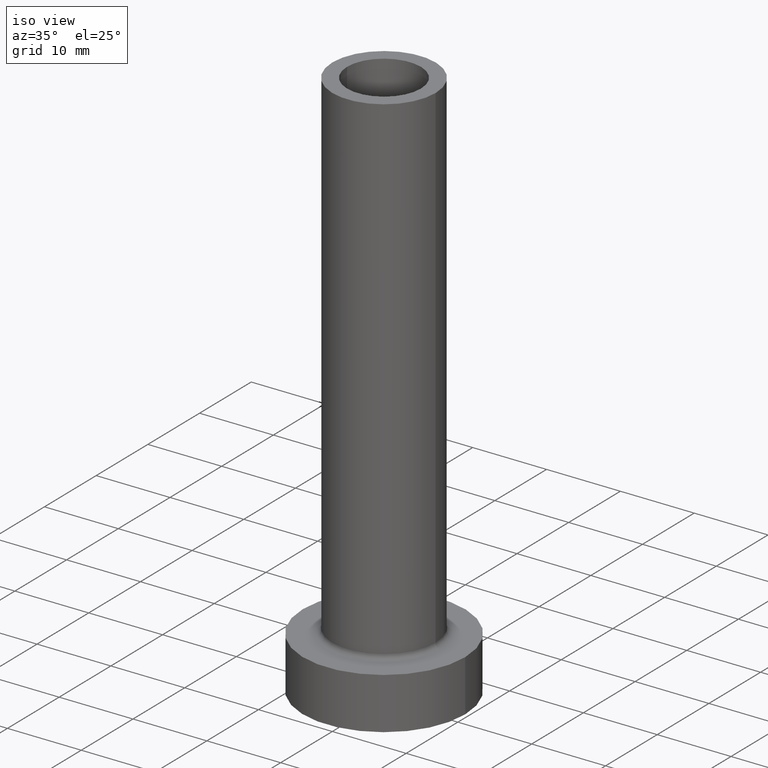
[diagram: clean part render]
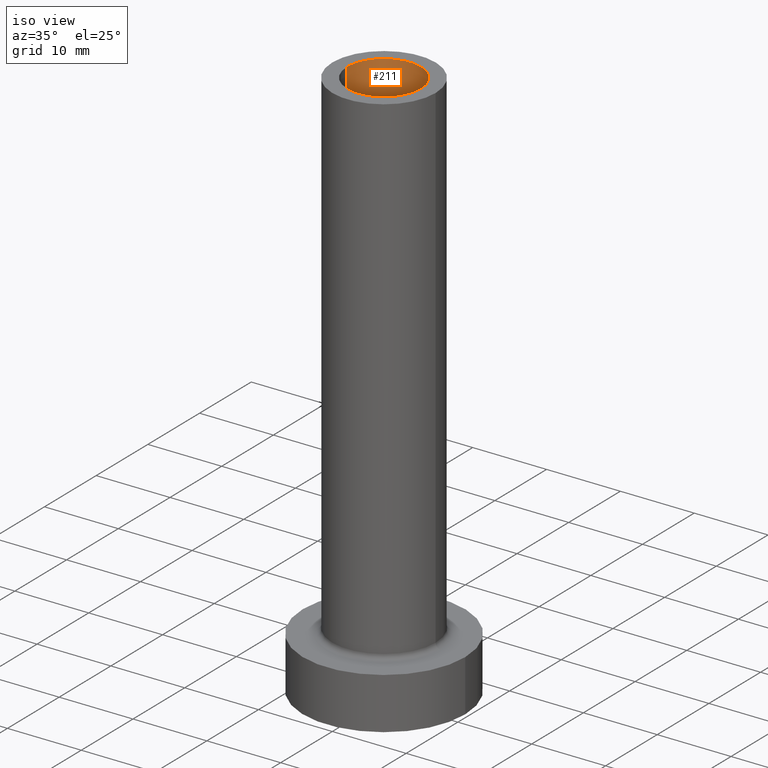
[diagram: same view with one face highlighted and labeled with its STEP entity id]
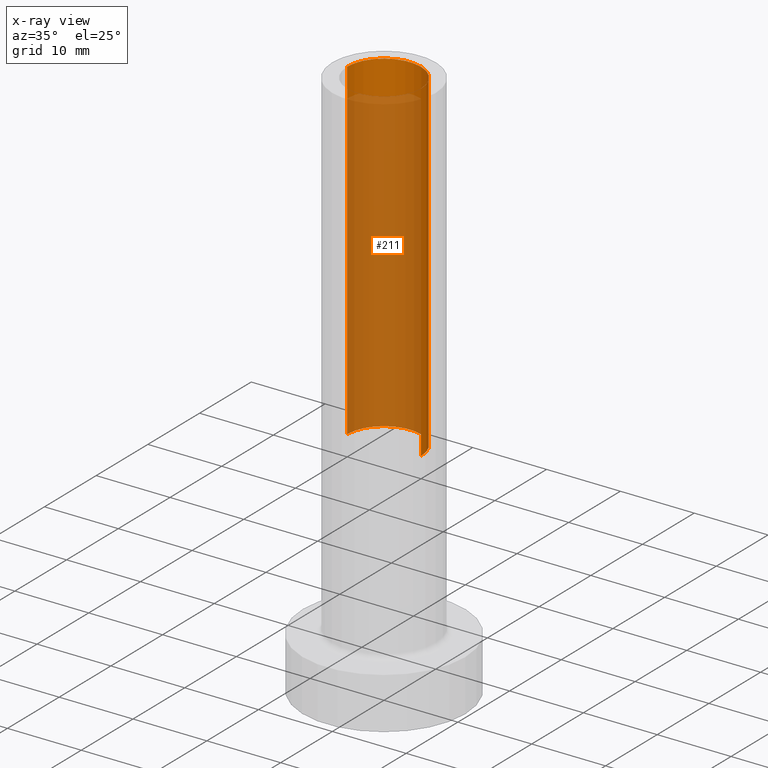
[diagram: x-ray of the same camera — body ghosted, the highlighted face saturated]
A machine part, iso view. The second image highlights one B-rep face of the part: STEP entity #211.
The next image is the same camera in x-ray: the body ghosted, the highlighted face saturated — about 81% of this face is hidden behind the body in this view.
In plain terms, the highlighted cylindrical surface (partial cylindrical patch) has radius 5 mm, axis along (0, 0, -1).
Its self-contained STEP definition (entity closure, byte-faithful):
#10 = EDGE_CURVE ( 'NONE', #274, #378, #61, .T. ) ;
#12 = VECTOR ( 'NONE', #119, 1000.000000000000000 ) ;
#25 = DIRECTION ( 'NONE',  ( 0.000000000000000000, 0.000000000000000000, -1.000000000000000000 ) ) ;
#61 = CIRCLE ( 'NONE', #148, 5.000000000000000000 ) ;
#66 = DIRECTION ( 'NONE',  ( -1.000000000000000000, 0.000000000000000000, 0.000000000000000000 ) ) ;
#69 = LINE ( 'NONE', #347, #110 ) ;
#72 = DIRECTION ( 'NONE',  ( 0.000000000000000000, 0.000000000000000000, 1.000000000000000000 ) ) ;
#103 = CARTESIAN_POINT ( 'NONE',  ( 5.000000000000000000, 6.123233995736765296E-16, 75.00000000000001421 ) ) ;
#104 = EDGE_LOOP ( 'NONE', ( #340, #136, #397, #205 ) ) ;
#110 = VECTOR ( 'NONE', #25, 1000.000000000000000 ) ;
#119 = DIRECTION ( 'NONE',  ( 0.000000000000000000, 0.000000000000000000, -1.000000000000000000 ) ) ;
#136 = ORIENTED_EDGE ( 'NONE', *, *, #10, .T. ) ;
#146 = CARTESIAN_POINT ( 'NONE',  ( -5.000000000000000000, 0.000000000000000000, 75.00000000000001421 ) ) ;
#148 = AXIS2_PLACEMENT_3D ( 'NONE', #169, #224, #285 ) ;
#157 = VERTEX_POINT ( 'NONE', #435 ) ;
#160 = EDGE_CURVE ( 'NONE', #378, #303, #279, .T. ) ;
#169 = CARTESIAN_POINT ( 'NONE',  ( 0.000000000000000000, 0.000000000000000000, 75.00000000000001421 ) ) ;
#184 = EDGE_CURVE ( 'NONE', #157, #303, #361, .T. ) ;
#191 = CARTESIAN_POINT ( 'NONE',  ( 0.000000000000000000, 0.000000000000000000, 30.00000000000001421 ) ) ;
#195 = AXIS2_PLACEMENT_3D ( 'NONE', #191, #72, #239 ) ;
#205 = ORIENTED_EDGE ( 'NONE', *, *, #184, .F. ) ;
#211 = ADVANCED_FACE ( 'NONE', ( #449 ), #344, .F. ) ;
#224 = DIRECTION ( 'NONE',  ( 0.000000000000000000, 0.000000000000000000, 1.000000000000000000 ) ) ;
#239 = DIRECTION ( 'NONE',  ( 1.000000000000000000, 0.000000000000000000, 0.000000000000000000 ) ) ;
#240 = CARTESIAN_POINT ( 'NONE',  ( 0.000000000000000000, 0.000000000000000000, 75.00000000000001421 ) ) ;
#244 = EDGE_CURVE ( 'NONE', #274, #157, #69, .T. ) ;
#246 = AXIS2_PLACEMENT_3D ( 'NONE', #240, #414, #66 ) ;
#250 = CARTESIAN_POINT ( 'NONE',  ( -5.000000000000000000, 0.000000000000000000, 75.00000000000001421 ) ) ;
#274 = VERTEX_POINT ( 'NONE', #103 ) ;
#279 = LINE ( 'NONE', #250, #12 ) ;
#285 = DIRECTION ( 'NONE',  ( 1.000000000000000000, 0.000000000000000000, 0.000000000000000000 ) ) ;
#303 = VERTEX_POINT ( 'NONE', #386 ) ;
#340 = ORIENTED_EDGE ( 'NONE', *, *, #244, .F. ) ;
#344 = CYLINDRICAL_SURFACE ( 'NONE', #246, 5.000000000000000000 ) ;
#347 = CARTESIAN_POINT ( 'NONE',  ( 5.000000000000000000, 6.123233995736765296E-16, 75.00000000000001421 ) ) ;
#361 = CIRCLE ( 'NONE', #195, 5.000000000000000000 ) ;
#378 = VERTEX_POINT ( 'NONE', #146 ) ;
#386 = CARTESIAN_POINT ( 'NONE',  ( -5.000000000000000000, 0.000000000000000000, 30.00000000000001421 ) ) ;
#397 = ORIENTED_EDGE ( 'NONE', *, *, #160, .T. ) ;
#414 = DIRECTION ( 'NONE',  ( 0.000000000000000000, 0.000000000000000000, -1.000000000000000000 ) ) ;
#435 = CARTESIAN_POINT ( 'NONE',  ( 5.000000000000000000, 6.123233995736765296E-16, 30.00000000000001421 ) ) ;
#449 = FACE_OUTER_BOUND ( 'NONE', #104, .T. ) ;